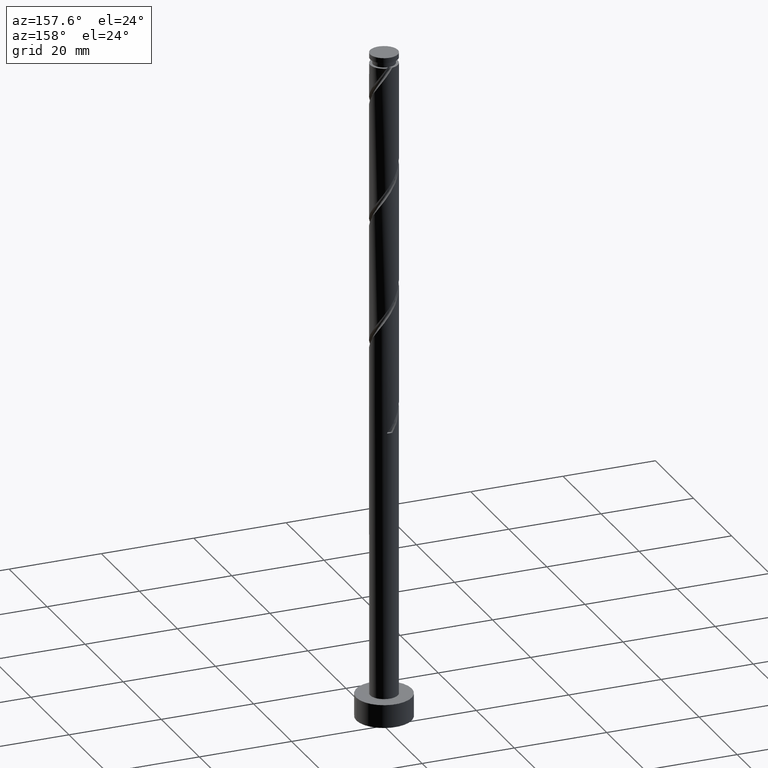
[diagram: clean part render]
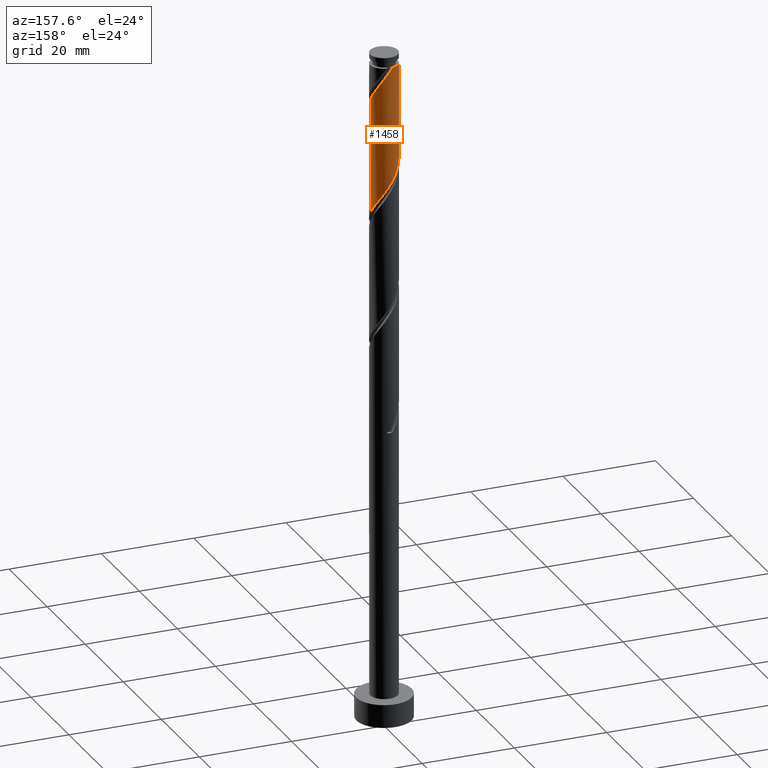
[diagram: same view with one face highlighted and labeled with its STEP entity id]
A machine part, auxiliary view. The second image highlights one B-rep face of the part: STEP entity #1458.
In plain terms, the highlighted cylindrical surface (edge-blend (fillet) strip) has radius 3 mm, axis along (-0, -0, -1).
Its self-contained STEP definition (entity closure, byte-faithful):
#23 = VERTEX_POINT ( 'NONE', #570 ) ;
#41 = CARTESIAN_POINT ( 'NONE',  ( 3.000000000000004441, 0.08632657957146837313, 135.7985901737241079 ) ) ;
#57 = CARTESIAN_POINT ( 'NONE',  ( 2.426318434868873553, 1.764363582886331328, 138.3441284664885984 ) ) ;
#77 = ORIENTED_EDGE ( 'NONE', *, *, #1192, .F. ) ;
#136 = CARTESIAN_POINT ( 'NONE',  ( -2.999999999999999556, -1.839688946530068217E-15, 124.0420677942743310 ) ) ;
#159 = CARTESIAN_POINT ( 'NONE',  ( -2.426318434868866891, 1.764363582886330217, 121.3744314967916438 ) ) ;
#188 = CARTESIAN_POINT ( 'NONE',  ( -1.489272404272451444, 2.639719205955340708, 119.5562496786098308 ) ) ;
#200 = CARTESIAN_POINT ( 'NONE',  ( 1.019700646609193795, 2.854165442247826867, 115.9198860422461621 ) ) ;
#205 = CARTESIAN_POINT ( 'NONE',  ( -0.5969924622622637678, 2.939999999983011758, 143.1926133149735278 ) ) ;
#278 = EDGE_CURVE ( 'NONE', #1130, #1139, #719, .T. ) ;
#290 = CARTESIAN_POINT ( 'NONE',  ( -2.679995620803123479, 1.415511657632330778, 121.9804921028522529 ) ) ;
#295 = LINE ( 'NONE', #1203, #871 ) ;
#311 = CARTESIAN_POINT ( 'NONE',  ( 0.1742842779187503410, 3.025834557752172138, 117.1320072543674371 ) ) ;
#323 = CARTESIAN_POINT ( 'NONE',  ( 0.000000000000000000, 0.000000000000000000, 143.1926133149734710 ) ) ;
#324 = AXIS2_PLACEMENT_3D ( 'NONE', #1637, #507, #786 ) ;
#336 = CARTESIAN_POINT ( 'NONE',  ( 2.922317697815699500, 0.6782766935647609463, 111.6774617998219554 ) ) ;
#343 = CARTESIAN_POINT ( 'NONE',  ( 1.782506933304611740, 2.451268816988037003, 114.7077648301249724 ) ) ;
#364 = ORIENTED_EDGE ( 'NONE', *, *, #670, .F. ) ;
#386 = VERTEX_POINT ( 'NONE', #1346 ) ;
#406 = VERTEX_POINT ( 'NONE', #1118 ) ;
#456 = CARTESIAN_POINT ( 'NONE',  ( 1.489272404272453221, 2.639719205955346926, 140.1623102846704398 ) ) ;
#465 = CARTESIAN_POINT ( 'NONE',  ( 2.172641248934617408, 2.113215508140331433, 138.9501890725492217 ) ) ;
#467 = ORIENTED_EDGE ( 'NONE', *, *, #278, .T. ) ;
#507 = DIRECTION ( 'NONE',  ( -0.000000000000000000, -0.000000000000000000, -1.000000000000000000 ) ) ;
#529 = ORIENTED_EDGE ( 'NONE', *, *, #1129, .F. ) ;
#570 = CARTESIAN_POINT ( 'NONE',  ( 3.000000000000004885, 1.271329759797191292E-15, 135.6764921690059111 ) ) ;
#575 = CARTESIAN_POINT ( 'NONE',  ( -0.6852515664601586121, 2.952368552718450889, 118.3441284664886268 ) ) ;
#602 = CARTESIAN_POINT ( 'NONE',  ( 2.612850670599506486, 1.474113758550440911, 112.8895830119431594 ) ) ;
#623 = LINE ( 'NONE', #985, #1411 ) ;
#670 = EDGE_CURVE ( 'NONE', #386, #406, #1370, .T. ) ;
#683 = CARTESIAN_POINT ( 'NONE',  ( -2.172641248934612523, 2.113215508140329213, 120.7683708907310205 ) ) ;
#696 = CARTESIAN_POINT ( 'NONE',  ( 2.825114153412479290, 1.009321564313631736, 137.1320072543673803 ) ) ;
#711 = CARTESIAN_POINT ( 'NONE',  ( 0.5969924622639725120, 2.939999999999999503, 116.5259466483067854 ) ) ;
#718 = CARTESIAN_POINT ( 'NONE',  ( 2.400905109240606627, 1.849784970432860387, 113.4956436180037684 ) ) ;
#719 = CIRCLE ( 'NONE', #1644, 2.999999999999995115 ) ;
#733 = CARTESIAN_POINT ( 'NONE',  ( 0.2554836442707055788, 2.989101555235316621, 141.9804921028522244 ) ) ;
#743 = ORIENTED_EDGE ( 'NONE', *, *, #1099, .T. ) ;
#767 = EDGE_LOOP ( 'NONE', ( #529, #743, #364, #77, #467 ) ) ;
#786 = DIRECTION ( 'NONE',  ( -1.000000000000000000, 0.000000000000000000, 0.000000000000000000 ) ) ;
#804 = CARTESIAN_POINT ( 'NONE',  ( -2.825114153412473961, 1.009321564313630848, 122.5865527089128761 ) ) ;
#816 = DIRECTION ( 'NONE',  ( -0.000000000000000000, -0.000000000000000000, -1.000000000000000000 ) ) ;
#830 = CARTESIAN_POINT ( 'NONE',  ( 2.091706021272608407, 2.150526893710448917, 114.1017042240643775 ) ) ;
#834 = CARTESIAN_POINT ( 'NONE',  ( 2.679995620803128364, 1.415511657632331222, 137.7380678604280035 ) ) ;
#846 = CARTESIAN_POINT ( 'NONE',  ( 1.401103789956902546, 2.652717129617932823, 115.3138254361855815 ) ) ;
#856 = CARTESIAN_POINT ( 'NONE',  ( -1.830956826603531651, 2.376467357047835627, 120.1623102846704256 ) ) ;
#871 = VECTOR ( 'NONE', #816, 1000.000000000000000 ) ;
#955 = CARTESIAN_POINT ( 'NONE',  ( -2.970232686021825774, 0.6031314709949324726, 123.1926133149734568 ) ) ;
#985 = CARTESIAN_POINT ( 'NONE',  ( -3.000000000000000444, 0.000000000000000000, 145.5000000000000284 ) ) ;
#989 = CARTESIAN_POINT ( 'NONE',  ( -1.087261985366304140, 2.796043879336896243, 118.9501890725492075 ) ) ;
#1006 = CARTESIAN_POINT ( 'NONE',  ( -0.2554836442707041355, 2.989101555235310848, 117.7380678604280035 ) ) ;
#1011 = CARTESIAN_POINT ( 'NONE',  ( -2.999999999999995115, 0.000000000000000000, 143.1926133149734710 ) ) ;
#1051 = CARTESIAN_POINT ( 'NONE',  ( -2.999999999999999556, 0.08632657957146433469, 123.9199697895561059 ) ) ;
#1089 = CARTESIAN_POINT ( 'NONE',  ( 3.000000000000004885, 1.271329759797191292E-15, 135.6764921690059111 ) ) ;
#1099 = EDGE_CURVE ( 'NONE', #23, #406, #295, .T. ) ;
#1118 = CARTESIAN_POINT ( 'NONE',  ( 3.000000000000000000, -2.976407319995801555E-15, 110.7087344609410451 ) ) ;
#1126 = DIRECTION ( 'NONE',  ( -1.000000000000000000, 0.000000000000000000, 0.000000000000000000 ) ) ;
#1129 = EDGE_CURVE ( 'NONE', #23, #1139, #1273, .T. ) ;
#1130 = VERTEX_POINT ( 'NONE', #1011 ) ;
#1139 = VERTEX_POINT ( 'NONE', #205 ) ;
#1192 = EDGE_CURVE ( 'NONE', #1130, #386, #623, .T. ) ;
#1203 = CARTESIAN_POINT ( 'NONE',  ( 3.000000000000000444, 3.673940397442060361E-16, 145.5000000000000284 ) ) ;
#1228 = DIRECTION ( 'NONE',  ( -0.000000000000000000, -0.000000000000000000, -1.000000000000000000 ) ) ;
#1233 = CARTESIAN_POINT ( 'NONE',  ( 2.999999999999999112, 0.3435867821553705292, 111.1946944139123588 ) ) ;
#1242 = CARTESIAN_POINT ( 'NONE',  ( 2.999999999999999556, -2.976407319995801555E-15, 110.7087344609410309 ) ) ;
#1246 = DIRECTION ( 'NONE',  ( -0.000000000000000000, -0.000000000000000000, -1.000000000000000000 ) ) ;
#1247 = CARTESIAN_POINT ( 'NONE',  ( 1.830956826603534982, 2.376467357047839624, 139.5562496786098734 ) ) ;
#1256 = CARTESIAN_POINT ( 'NONE',  ( 1.087261985366306583, 2.796043879336900684, 140.7683708907310631 ) ) ;
#1273 =( BOUNDED_CURVE ( )  B_SPLINE_CURVE ( 2, ( #1089, #41, #1454, #1324, #696, #834, #57, #465, #1247, #456, #1256, #1595, #733, #1347, #1354 ),
 .UNSPECIFIED., .F., .T. ) 
 B_SPLINE_CURVE_WITH_KNOTS ( ( 3, 2, 2, 2, 2, 2, 2, 3 ),
 ( 0.6795252162417514397, 0.6818181818181818787, 0.6931818181818181213, 0.7045454545454545858, 0.7159090909090908283, 0.7272727272727272929, 0.7386363636363636465, 0.7500000000000000000 ),
 .UNSPECIFIED. ) 
 CURVE ( )  GEOMETRIC_REPRESENTATION_ITEM ( )  RATIONAL_B_SPLINE_CURVE ( ( 0.9061101570135633443, 0.9072237824201454526, 0.9090909090909228274, 0.8998376744372251768, 0.9090909090909228274, 0.8998376744372251768, 0.9090909090909228274, 0.8998376744372251768, 0.9090909090909228274, 0.8998376744372251768, 0.9090909090909228274, 0.8998376744372251768, 0.9090909090909228274, 0.8998376744372251768, 0.9090909090909228274 ) ) 
 REPRESENTATION_ITEM ( '' )  );
#1324 = CARTESIAN_POINT ( 'NONE',  ( 2.970232686021831991, 0.6031314709949323616, 136.5259466483067854 ) ) ;
#1343 = CARTESIAN_POINT ( 'NONE',  ( 2.824796231958408121, 1.098442546668019659, 112.2835224058825503 ) ) ;
#1346 = CARTESIAN_POINT ( 'NONE',  ( -2.999999999999999556, -1.839688946530068217E-15, 124.0420677942743310 ) ) ;
#1347 = CARTESIAN_POINT ( 'NONE',  ( -0.1742842779187495639, 3.025834557752177467, 142.5865527089129046 ) ) ;
#1354 = CARTESIAN_POINT ( 'NONE',  ( -0.5969924622622637678, 2.939999999983011758, 143.1926133149735278 ) ) ;
#1370 =( BOUNDED_CURVE ( )  B_SPLINE_CURVE ( 2, ( #136, #1051, #1537, #955, #804, #290, #159, #683, #856, #188, #989, #575, #1006, #311, #711, #200, #846, #343, #830, #718, #602, #1343, #336, #1233, #1242 ),
 .UNSPECIFIED., .F., .T. ) 
 B_SPLINE_CURVE_WITH_KNOTS ( ( 3, 2, 2, 2, 2, 2, 2, 2, 2, 2, 2, 2, 3 ),
 ( 0.4295252162417512731, 0.4318181818181818232, 0.4431818181818181768, 0.4545454545454545303, 0.4659090909090908839, 0.4772727272727272929, 0.4886363636363636465, 0.5000000000000000000, 0.5113636363636363535, 0.5227272727272727071, 0.5340909090909090606, 0.5454545454545454142, 0.5545252162417512176 ),
 .UNSPECIFIED. ) 
 CURVE ( )  GEOMETRIC_REPRESENTATION_ITEM ( )  RATIONAL_B_SPLINE_CURVE ( ( 0.9061101570135556837, 0.9072237824201379031, 0.9090909090909153889, 0.8998376744372178493, 0.9090909090909153889, 0.8998376744372178493, 0.9090909090909153889, 0.8998376744372178493, 0.9090909090909153889, 0.8998376744372178493, 0.9090909090909153889, 0.8998376744372178493, 0.9090909090909153889, 0.8998376744372178493, 0.9090909090909153889, 0.8998376744372178493, 0.9090909090909153889, 0.8998376744372178493, 0.9090909090909153889, 0.8998376744372178493, 0.9090909090909153889, 0.8998376744372178493, 0.9090909090909153889, 0.9017048011079953351, 0.9061101570135556837 ) ) 
 REPRESENTATION_ITEM ( '' )  );
#1372 = CYLINDRICAL_SURFACE ( 'NONE', #324, 3.000000000000000444 ) ;
#1411 = VECTOR ( 'NONE', #1228, 1000.000000000000000 ) ;
#1454 = CARTESIAN_POINT ( 'NONE',  ( 2.995035924847414766, 0.1725103152667142037, 135.9198860422461621 ) ) ;
#1458 = ADVANCED_FACE ( 'NONE', ( #1649 ), #1372, .T. ) ;
#1537 = CARTESIAN_POINT ( 'NONE',  ( -2.995035924847409436, 0.1725103152667151751, 123.7986739210340517 ) ) ;
#1595 = CARTESIAN_POINT ( 'NONE',  ( 0.6852515664601606105, 2.952368552718455774, 141.3744314967916296 ) ) ;
#1637 = CARTESIAN_POINT ( 'NONE',  ( 0.000000000000000000, 0.000000000000000000, 145.5000000000000284 ) ) ;
#1644 = AXIS2_PLACEMENT_3D ( 'NONE', #323, #1246, #1126 ) ;
#1649 = FACE_OUTER_BOUND ( 'NONE', #767, .T. ) ;